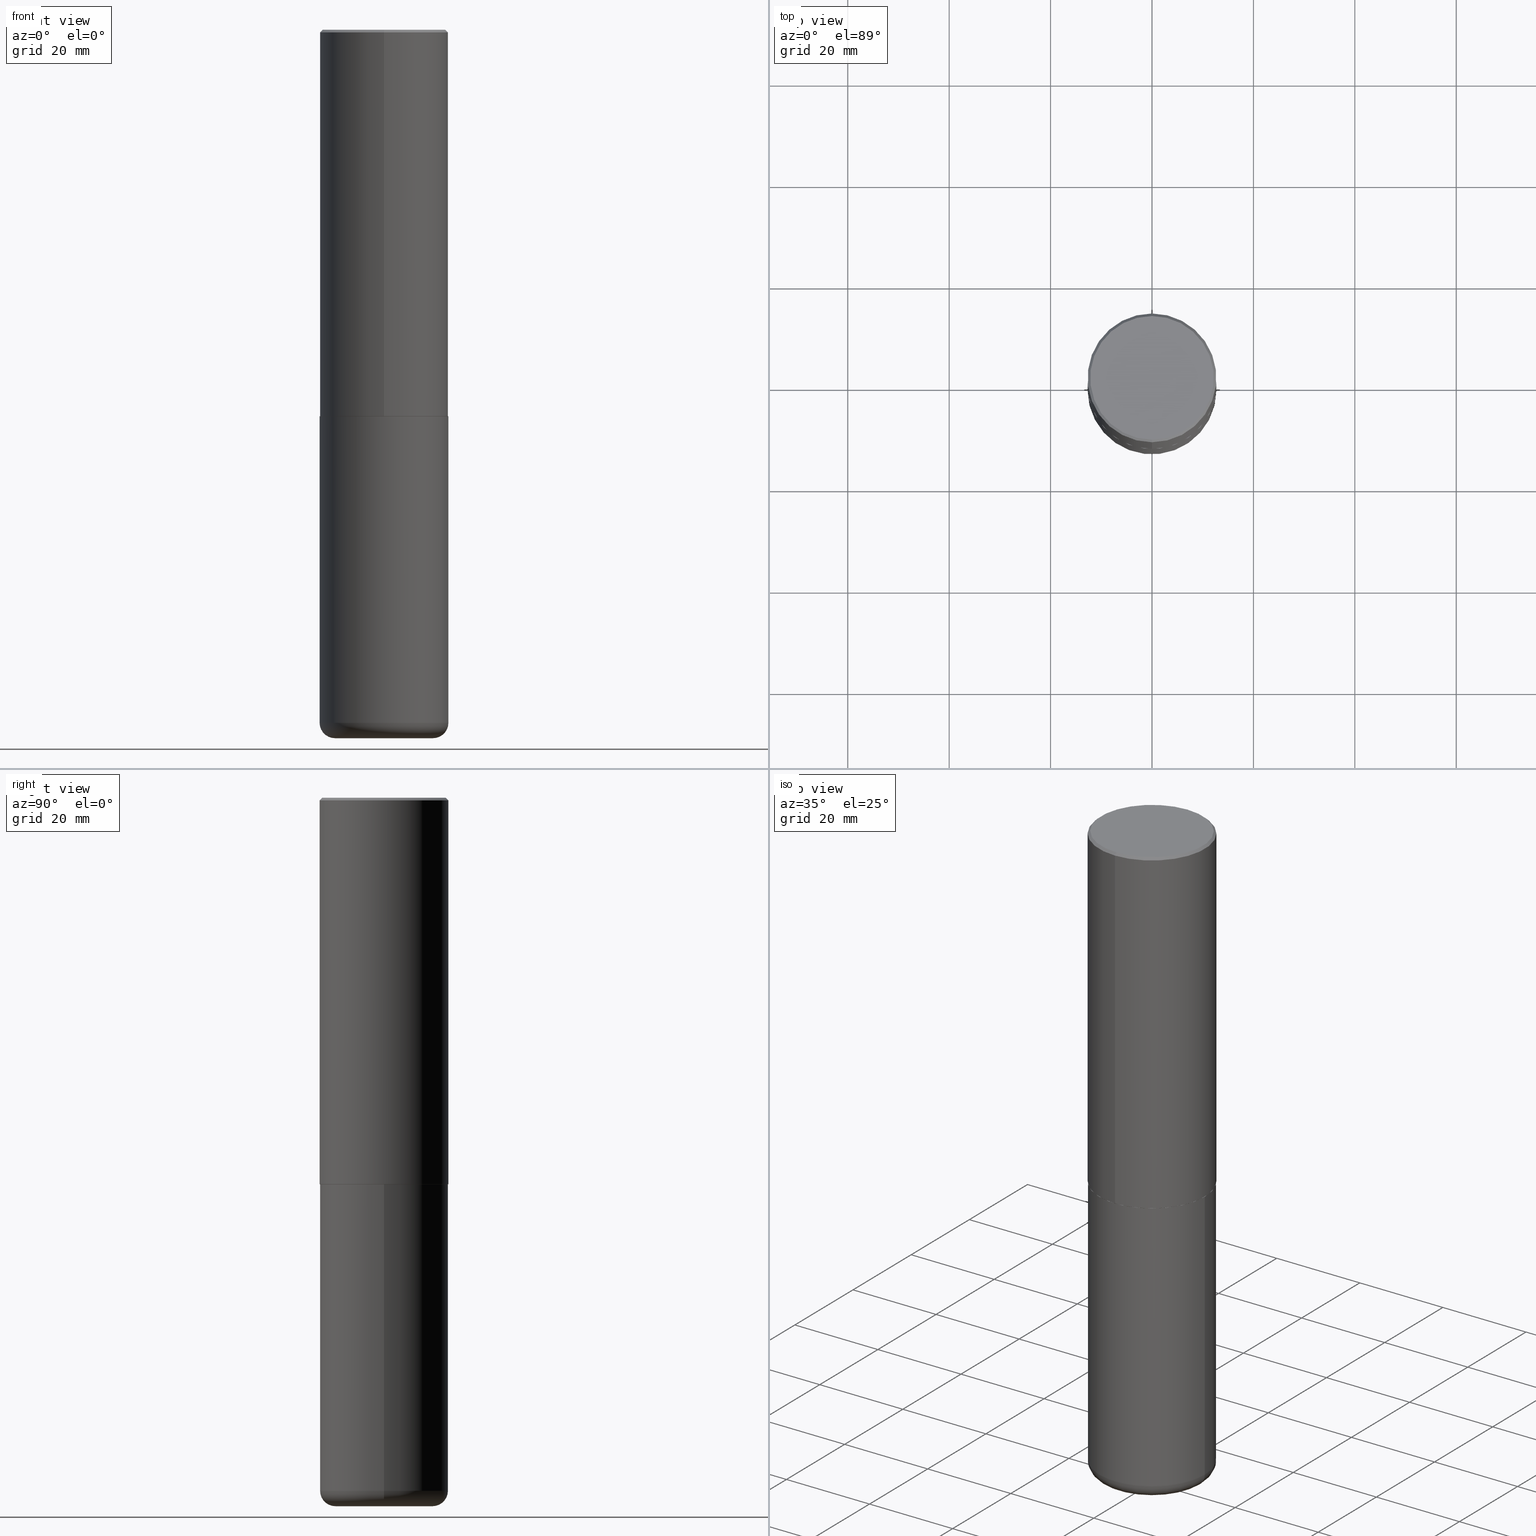
[diagram: canonical four-view strip — front | top / right | iso, engineering-drawing reading convention]
A machine part, canonical four-view strip (front | top / right | iso — engineering-drawing reading convention). The complete STEP part file that produces these views, byte-faithful:
ISO-10303-21;
HEADER;
FILE_DESCRIPTION (( 'STEP AP203' ),
    '1' );
FILE_NAME ('77473.STEP',
    '2024-05-02T19:46:53',
    ( '' ),
    ( '' ),
    'SwSTEP 2.0',
    'SolidWorks 2023',
    '' );
FILE_SCHEMA (( 'CONFIG_CONTROL_DESIGN' ));
ENDSEC;

DATA;
#1 = CIRCLE ( 'NONE', #392, 0.5000000000000001110 ) ;
#2 = AXIS2_PLACEMENT_3D ( 'NONE', #20, #144, #284 ) ;
#3 = ADVANCED_FACE ( 'NONE', ( #391 ), #110, .T. ) ;
#4 = FACE_OUTER_BOUND ( 'NONE', #107, .T. ) ;
#5 = DATE_AND_TIME ( #37, #249 ) ;
#6 = CARTESIAN_POINT ( 'NONE',  ( 7.336406418555408669E-29, -1.047444401652943478E-14, -2.999999999999999556 ) ) ;
#7 = AXIS2_PLACEMENT_3D ( 'NONE', #138, #199, #298 ) ;
#8 =( GEOMETRIC_REPRESENTATION_CONTEXT ( 3 ) GLOBAL_UNCERTAINTY_ASSIGNED_CONTEXT ( ( #28 ) ) GLOBAL_UNIT_ASSIGNED_CONTEXT ( ( #58, #163, #415 ) ) REPRESENTATION_CONTEXT ( 'NONE', 'WORKASPACE' ) );
#9 = CIRCLE ( 'NONE', #233, 0.5000000000000000000 ) ;
#10 = FACE_OUTER_BOUND ( 'NONE', #212, .T. ) ;
#11 = ORIENTED_EDGE ( 'NONE', *, *, #156, .F. ) ;
#12 = EDGE_CURVE ( 'NONE', #390, #152, #371, .T. ) ;
#13 = DIRECTION ( 'NONE',  ( -1.000000000000000000, 7.105427357601009747E-15, 0.000000000000000000 ) ) ;
#14 = DIRECTION ( 'NONE',  ( -2.445468806185136877E-29, 3.491481338843145188E-15, 1.000000000000000000 ) ) ;
#15 = DIRECTION ( 'NONE',  ( -6.982962677686265922E-15, -1.000000000000000000, 3.490694428695902798E-15 ) ) ;
#16 = EDGE_CURVE ( 'NONE', #251, #329, #262, .T. ) ;
#17 = VERTEX_POINT ( 'NONE', #34 ) ;
#18 = DIRECTION ( 'NONE',  ( -6.982962677686265922E-15, -1.000000000000000000, 3.284787166730577015E-15 ) ) ;
#19 = VERTEX_POINT ( 'NONE', #170 ) ;
#20 = CARTESIAN_POINT ( 'NONE',  ( 2.619453942708643347E-45, -3.738203133764044518E-31, -1.070905291231867826E-16 ) ) ;
#21 = VECTOR ( 'NONE', #352, 39.37007874015748143 ) ;
#22 = AXIS2_PLACEMENT_3D ( 'NONE', #413, #26, #159 ) ;
#23 = EDGE_LOOP ( 'NONE', ( #124, #340 ) ) ;
#24 = ADVANCED_FACE ( 'NONE', ( #196 ), #61, .T. ) ;
#25 = ORIENTED_EDGE ( 'NONE', *, *, #404, .F. ) ;
#26 = DIRECTION ( 'NONE',  ( 0.000000000000000000, 0.000000000000000000, 1.000000000000000000 ) ) ;
#27 = DIRECTION ( 'NONE',  ( 1.000000000000000000, -6.982962677686266711E-15, 0.000000000000000000 ) ) ;
#28 = UNCERTAINTY_MEASURE_WITH_UNIT (LENGTH_MEASURE( 1.000000000000000082E-05 ), #58, 'distance_accuracy_value', 'NONE');
#29 = EDGE_CURVE ( 'NONE', #329, #17, #101, .T. ) ;
#30 = ORIENTED_EDGE ( 'NONE', *, *, #286, .F. ) ;
#31 = SECURITY_CLASSIFICATION ( '', '', #254 ) ;
#32 = FACE_OUTER_BOUND ( 'NONE', #216, .T. ) ;
#33 = DIRECTION ( 'NONE',  ( -2.445468806185136597E-29, 3.491481338843145583E-15, 1.000000000000000000 ) ) ;
#34 = CARTESIAN_POINT ( 'NONE',  ( -0.5000000000000000000, -1.107659313095227958E-14, -2.999999999999999556 ) ) ;
#35 = PERSON_AND_ORGANIZATION ( #206, #184 ) ;
#36 = AXIS2_PLACEMENT_3D ( 'NONE', #113, #77, #208 ) ;
#37 = CALENDAR_DATE ( 2024, 2, 5 ) ;
#38 = DIRECTION ( 'NONE',  ( -2.445468806185136597E-29, 3.491481338843145583E-15, 1.000000000000000000 ) ) ;
#39 = DIRECTION ( 'NONE',  ( -2.446018302604025378E-29, 3.490694428695902798E-15, 1.000000000000000000 ) ) ;
#40 = DIRECTION ( 'NONE',  ( -6.982962677686265922E-15, -1.000000000000000000, 3.284787166730577015E-15 ) ) ;
#41 = EDGE_LOOP ( 'NONE', ( #311, #186, #410, #287 ) ) ;
#42 = CONICAL_SURFACE ( 'NONE', #97, 0.4989999999999999991, 0.7853981633979947308 ) ;
#43 = VECTOR ( 'NONE', #291, 39.37007874015748143 ) ;
#44 = DIRECTION ( 'NONE',  ( -6.982962677686265922E-15, -1.000000000000000000, 3.278217592397113496E-15 ) ) ;
#45 = ORIENTED_EDGE ( 'NONE', *, *, #134, .T. ) ;
#46 = ORIENTED_EDGE ( 'NONE', *, *, #178, .T. ) ;
#47 = DESIGN_CONTEXT ( 'detailed design', #376, 'design' ) ;
#48 = DIRECTION ( 'NONE',  ( -6.982962677686265922E-15, -1.000000000000000000, 3.491643216902136408E-15 ) ) ;
#49 = ORIENTED_EDGE ( 'NONE', *, *, #351, .T. ) ;
#50 = ORIENTED_EDGE ( 'NONE', *, *, #156, .T. ) ;
#51 = DIRECTION ( 'NONE',  ( -2.446018302604025378E-29, 3.490694428695902798E-15, 1.000000000000000000 ) ) ;
#52 = ORIENTED_EDGE ( 'NONE', *, *, #136, .F. ) ;
#53 = CARTESIAN_POINT ( 'NONE',  ( -3.430248998885764992E-15, -0.5000000000000001110, -0.01999999999999835937 ) ) ;
#54 = FACE_OUTER_BOUND ( 'NONE', #120, .T. ) ;
#55 = CONICAL_SURFACE ( 'NONE', #354, 0.5000000000000000000, 0.7853981633974463916 ) ;
#56 = VERTEX_POINT ( 'NONE', #103 ) ;
#57 = APPROVAL ( #197, 'UNSPECIFIED' ) ;
#58 =( CONVERSION_BASED_UNIT ( 'INCH', #182 ) LENGTH_UNIT ( ) NAMED_UNIT ( #86 ) );
#59 = CC_DESIGN_SECURITY_CLASSIFICATION ( #31, ( #177 ) ) ;
#60 = EDGE_CURVE ( 'NONE', #56, #152, #9, .T. ) ;
#61 = PLANE ( 'NONE',  #355 ) ;
#62 = CARTESIAN_POINT ( 'NONE',  ( -3.484498376165373188E-15, -0.4990000000000104352, -2.999999999999998224 ) ) ;
#63 = DATE_AND_TIME ( #299, #65 ) ;
#64 = CARTESIAN_POINT ( 'NONE',  ( 1.315662217727603498E-28, -1.878416960297612308E-14, -5.379999999999999893 ) ) ;
#65 = LOCAL_TIME ( 15, 46, 53.00000000000000000, #173 ) ;
#66 = CC_DESIGN_DATE_AND_TIME_ASSIGNMENT ( #63, #356, ( #70 ) ) ;
#67 = DIRECTION ( 'NONE',  ( 1.000000000000000000, -6.982962677686269077E-15, 0.000000000000000000 ) ) ;
#68 = DIRECTION ( 'NONE',  ( -6.982962677686265922E-15, -1.000000000000000000, 3.491643216902136408E-15 ) ) ;
#69 = ORIENTED_EDGE ( 'NONE', *, *, #12, .F. ) ;
#70 = PRODUCT_DEFINITION ( 'UNKNOWN', '', #177, #47 ) ;
#71 = LINE ( 'NONE', #145, #213 ) ;
#72 = CIRCLE ( 'NONE', #230, 0.1199999999999999539 ) ;
#73 = AXIS2_PLACEMENT_3D ( 'NONE', #200, #234, #67 ) ;
#74 = FACE_OUTER_BOUND ( 'NONE', #222, .T. ) ;
#75 = ORIENTED_EDGE ( 'NONE', *, *, #178, .F. ) ;
#76 = DIRECTION ( 'NONE',  ( -2.445468806185136597E-29, 3.491481338843145583E-15, 1.000000000000000000 ) ) ;
#77 = DIRECTION ( 'NONE',  ( -2.445468806185136597E-29, 3.491481338843145583E-15, 1.000000000000000000 ) ) ;
#78 = ORIENTED_EDGE ( 'NONE', *, *, #405, .T. ) ;
#79 = PRODUCT_RELATED_PRODUCT_CATEGORY ( 'detail', '', ( #353 ) ) ;
#80 = AXIS2_PLACEMENT_3D ( 'NONE', #308, #76, #203 ) ;
#81 = APPLICATION_CONTEXT ( 'configuration controlled 3d designs of mechanical parts and assemblies' ) ;
#82 = AXIS2_PLACEMENT_3D ( 'NONE', #402, #339, #15 ) ;
#83 = ORIENTED_EDGE ( 'NONE', *, *, #361, .F. ) ;
#84 = CARTESIAN_POINT ( 'NONE',  ( 0.3799999999999999489, -2.185667318115807981E-14, -5.500000000000000000 ) ) ;
#85 = CARTESIAN_POINT ( 'NONE',  ( -3.491481338843061963E-15, -0.5000000000000107692, -2.998999999999998778 ) ) ;
#86 = DIMENSIONAL_EXPONENTS ( 1.000000000000000000, 0.000000000000000000, 0.000000000000000000, 0.000000000000000000, 0.000000000000000000, 0.000000000000000000, 0.000000000000000000 ) ;
#87 = CC_DESIGN_DATE_AND_TIME_ASSIGNMENT ( #164, #189, ( #31 ) ) ;
#88 = ORIENTED_EDGE ( 'NONE', *, *, #117, .T. ) ;
#89 = CALENDAR_DATE ( 2024, 2, 5 ) ;
#90 = CIRCLE ( 'NONE', #290, 0.5000000000000000000 ) ;
#91 = VERTEX_POINT ( 'NONE', #194 ) ;
#92 = ORIENTED_EDGE ( 'NONE', *, *, #134, .F. ) ;
#93 = CARTESIAN_POINT ( 'NONE',  ( 3.351822085289408337E-15, 0.4800000000000000933, -1.729078590335627126E-15 ) ) ;
#94 = PERSON_AND_ORGANIZATION ( #206, #184 ) ;
#95 = ADVANCED_FACE ( 'NONE', ( #4 ), #297, .T. ) ;
#96 = APPROVAL_STATUS ( 'not_yet_approved' ) ;
#97 = AXIS2_PLACEMENT_3D ( 'NONE', #105, #115, #18 ) ;
#98 = CARTESIAN_POINT ( 'NONE',  ( -3.484498376165373188E-15, -0.4990000000000104352, -2.999999999999998224 ) ) ;
#99 = CIRCLE ( 'NONE', #320, 0.4989999999999999991 ) ;
#100 = FACE_OUTER_BOUND ( 'NONE', #282, .T. ) ;
#101 = LINE ( 'NONE', #293, #21 ) ;
#102 = APPROVAL_DATE_TIME ( #5, #122 ) ;
#103 = CARTESIAN_POINT ( 'NONE',  ( 3.491481338843133355E-15, 0.4999999999999999445, -0.02000000000000185310 ) ) ;
#104 = APPROVAL_PERSON_ORGANIZATION ( #375, #272, #229 ) ;
#105 = CARTESIAN_POINT ( 'NONE',  ( 7.338054907812074731E-29, -1.047208328608770642E-14, -2.999999999999999556 ) ) ;
#106 = CARTESIAN_POINT ( 'NONE',  ( 4.892036605208077240E-31, -6.981388857391842821E-17, -0.02000000000000010797 ) ) ;
#107 = EDGE_LOOP ( 'NONE', ( #334, #242, #179, #92 ) ) ;
#108 = VERTEX_POINT ( 'NONE', #377 ) ;
#109 = CARTESIAN_POINT ( 'NONE',  ( 0.5000000000000000000, -2.227565094181925644E-14, -5.379999999999999893 ) ) ;
#110 = CYLINDRICAL_SURFACE ( 'NONE', #349, 0.5000000000000001110 ) ;
#111 = FACE_OUTER_BOUND ( 'NONE', #174, .T. ) ;
#112 = DIRECTION ( 'NONE',  ( -6.982962677686265922E-15, -1.000000000000000000, 3.490694428695902798E-15 ) ) ;
#113 = CARTESIAN_POINT ( 'NONE',  ( 0.000000000000000000, 0.000000000000000000, 0.000000000000000000 ) ) ;
#114 = EDGE_LOOP ( 'NONE', ( #25, #88, #45, #158 ) ) ;
#115 = DIRECTION ( 'NONE',  ( -2.446018302604025378E-29, 3.490694428695902798E-15, 1.000000000000000000 ) ) ;
#116 = CIRCLE ( 'NONE', #162, 0.3799999999999999489 ) ;
#117 = EDGE_CURVE ( 'NONE', #365, #148, #99, .T. ) ;
#118 = CIRCLE ( 'NONE', #276, 0.3799999999999999489 ) ;
#119 = CLOSED_SHELL ( 'NONE', ( #95, #198, #183, #418, #3, #195, #416, #389 ) ) ;
#120 = EDGE_LOOP ( 'NONE', ( #302, #151, #374, #395 ) ) ;
#121 = DIRECTION ( 'NONE',  ( -2.446018302604025378E-29, 3.490694428695902798E-15, 1.000000000000000000 ) ) ;
#122 = APPROVAL ( #414, 'UNSPECIFIED' ) ;
#123 = ADVANCED_FACE ( 'NONE', ( #100 ), #362, .T. ) ;
#124 = ORIENTED_EDGE ( 'NONE', *, *, #143, .F. ) ;
#125 = ORIENTED_EDGE ( 'NONE', *, *, #386, .T. ) ;
#126 = DIRECTION ( 'NONE',  ( 2.446018302604025378E-29, -3.490694428695902798E-15, -1.000000000000000000 ) ) ;
#127 = APPROVAL_DATE_TIME ( #160, #272 ) ;
#128 = DIRECTION ( 'NONE',  ( -2.446018302604025097E-29, 3.490694428695902798E-15, 1.000000000000000000 ) ) ;
#129 = AXIS2_PLACEMENT_3D ( 'NONE', #130, #316, #190 ) ;
#130 = CARTESIAN_POINT ( 'NONE',  ( 7.338054907812074731E-29, -1.047208328608770642E-14, -2.999999999999999556 ) ) ;
#131 = PERSON_AND_ORGANIZATION_ROLE ( 'design_owner' ) ;
#132 =( LENGTH_UNIT ( ) NAMED_UNIT ( * ) SI_UNIT ( $, .METRE. ) );
#133 = CARTESIAN_POINT ( 'NONE',  ( 4.892036605208077240E-31, -6.981388857391842821E-17, -0.02000000000000010797 ) ) ;
#134 = EDGE_CURVE ( 'NONE', #148, #390, #240, .T. ) ;
#135 = CALENDAR_DATE ( 2024, 2, 5 ) ;
#136 = EDGE_CURVE ( 'NONE', #313, #251, #400, .T. ) ;
#137 = DIRECTION ( 'NONE',  ( 2.438088387897960049E-29, -3.491481338843145188E-15, -1.000000000000000000 ) ) ;
#138 = CARTESIAN_POINT ( 'NONE',  ( 0.3799999999999999489, -2.143769542049690317E-14, -5.379999999999999893 ) ) ;
#139 = AXIS2_PLACEMENT_3D ( 'NONE', #64, #38, #172 ) ;
#140 = LOCAL_TIME ( 15, 46, 53.00000000000000000, #347 ) ;
#141 = ADVANCED_FACE ( 'NONE', ( #10 ), #379, .F. ) ;
#142 = CARTESIAN_POINT ( 'NONE',  ( 3.552713678800501718E-15, 0.5000000000000001110, -1.745347214347951794E-15 ) ) ;
#143 = EDGE_CURVE ( 'NONE', #313, #108, #116, .T. ) ;
#144 = DIRECTION ( 'NONE',  ( -2.446018302604025378E-29, 3.490694428695902798E-15, 1.000000000000000000 ) ) ;
#145 = CARTESIAN_POINT ( 'NONE',  ( 3.491481338843133355E-15, 0.4999999999999999445, -0.02000000000000185310 ) ) ;
#146 = CIRCLE ( 'NONE', #185, 0.5000000000000003331 ) ;
#147 = CARTESIAN_POINT ( 'NONE',  ( 0.5000000000000000000, -3.491481338843133355E-15, 2.438088387897967896E-29 ) ) ;
#148 = VERTEX_POINT ( 'NONE', #98 ) ;
#149 = CARTESIAN_POINT ( 'NONE',  ( -0.3799999999999999489, -1.608410720708774314E-14, -5.379999999999999893 ) ) ;
#150 = DIRECTION ( 'NONE',  ( -2.445468806185136597E-29, 3.491481338843145583E-15, 1.000000000000000000 ) ) ;
#151 = ORIENTED_EDGE ( 'NONE', *, *, #286, .T. ) ;
#152 = VERTEX_POINT ( 'NONE', #323 ) ;
#153 = CC_DESIGN_PERSON_AND_ORGANIZATION_ASSIGNMENT ( #343, #317, ( #31 ) ) ;
#154 = LOCAL_TIME ( 15, 46, 53.00000000000000000, #406 ) ;
#155 = PLANE ( 'NONE',  #129 ) ;
#156 = EDGE_CURVE ( 'NONE', #108, #329, #72, .T. ) ;
#157 = PERSON_AND_ORGANIZATION ( #206, #184 ) ;
#158 = ORIENTED_EDGE ( 'NONE', *, *, #409, .F. ) ;
#159 = DIRECTION ( 'NONE',  ( 1.000000000000000000, 0.000000000000000000, 0.000000000000000000 ) ) ;
#160 = DATE_AND_TIME ( #89, #140 ) ;
#161 = LOCAL_TIME ( 15, 46, 53.00000000000000000, #201 ) ;
#162 = AXIS2_PLACEMENT_3D ( 'NONE', #267, #382, #385 ) ;
#163 =( NAMED_UNIT ( * ) PLANE_ANGLE_UNIT ( ) SI_UNIT ( $, .RADIAN. ) );
#164 = DATE_AND_TIME ( #345, #154 ) ;
#165 = LINE ( 'NONE', #255, #43 ) ;
#166 = DIRECTION ( 'NONE',  ( -6.982962677686265922E-15, -1.000000000000000000, 3.284787166730577015E-15 ) ) ;
#167 = CC_DESIGN_PERSON_AND_ORGANIZATION_ASSIGNMENT ( #226, #131, ( #353 ) ) ;
#168 = CIRCLE ( 'NONE', #285, 0.5000000000000000000 ) ;
#169 = APPROVAL_ROLE ( '' ) ;
#170 = CARTESIAN_POINT ( 'NONE',  ( -3.361644018908050055E-15, -0.4800000000000000933, 1.568442796650846842E-15 ) ) ;
#171 = APPROVAL_DATE_TIME ( #264, #57 ) ;
#172 = DIRECTION ( 'NONE',  ( 1.000000000000000000, -6.982962677686264344E-15, 4.883557194083112340E-29 ) ) ;
#173 = COORDINATED_UNIVERSAL_TIME_OFFSET ( 5, 0, .BEHIND. ) ;
#174 = EDGE_LOOP ( 'NONE', ( #315, #49, #245, #223 ) ) ;
#175 = CARTESIAN_POINT ( 'NONE',  ( 1.345007843401824904E-28, -1.920314736363729972E-14, -5.500000000000000000 ) ) ;
#176 = DIRECTION ( 'NONE',  ( -2.446018302604025378E-29, 3.490694428695902798E-15, 1.000000000000000000 ) ) ;
#177 = PRODUCT_DEFINITION_FORMATION_WITH_SPECIFIED_SOURCE ( 'ANY', '', #353, .NOT_KNOWN. ) ;
#178 = EDGE_CURVE ( 'NONE', #301, #56, #399, .T. ) ;
#179 = ORIENTED_EDGE ( 'NONE', *, *, #278, .F. ) ;
#180 = DIRECTION ( 'NONE',  ( -6.982962677686265922E-15, -1.000000000000000000, 3.490694428695902798E-15 ) ) ;
#181 = CARTESIAN_POINT ( 'NONE',  ( 3.552713678800539584E-15, 0.4999999999999898970, -2.999000000000001886 ) ) ;
#182 = LENGTH_MEASURE_WITH_UNIT ( LENGTH_MEASURE( 0.02539999999999999897 ), #132 );
#183 = ADVANCED_FACE ( 'NONE', ( #54 ), #358, .T. ) ;
#184 = ORGANIZATION ( 'UNSPECIFIED', 'UNSPECIFIED', '' ) ;
#185 = AXIS2_PLACEMENT_3D ( 'NONE', #408, #253, #187 ) ;
#186 = ORIENTED_EDGE ( 'NONE', *, *, #29, .T. ) ;
#187 = DIRECTION ( 'NONE',  ( -6.982962677686265922E-15, -1.000000000000000000, 3.278217592397113496E-15 ) ) ;
#188 = DIRECTION ( 'NONE',  ( -2.445468806185136597E-29, 3.491481338843145583E-15, 1.000000000000000000 ) ) ;
#189 = DATE_TIME_ROLE ( 'classification_date' ) ;
#190 = DIRECTION ( 'NONE',  ( -6.982962677686265922E-15, -1.000000000000000000, 3.490694428695902798E-15 ) ) ;
#191 = CIRCLE ( 'NONE', #363, 0.4989999999999999991 ) ;
#192 = CARTESIAN_POINT ( 'NONE',  ( -3.491481338843133750E-15, -0.5000000000000001110, 1.745347214347951794E-15 ) ) ;
#193 = CC_DESIGN_PERSON_AND_ORGANIZATION_ASSIGNMENT ( #157, #258, ( #177 ) ) ;
#194 = CARTESIAN_POINT ( 'NONE',  ( 0.5000000000000000000, -1.396592535537256813E-14, -2.999999999999999556 ) ) ;
#195 = ADVANCED_FACE ( 'NONE', ( #270 ), #42, .T. ) ;
#196 = FACE_OUTER_BOUND ( 'NONE', #23, .T. ) ;
#197 = APPROVAL_STATUS ( 'not_yet_approved' ) ;
#198 = ADVANCED_FACE ( 'NONE', ( #364 ), #303, .T. ) ;
#199 = DIRECTION ( 'NONE',  ( -6.982962677686266711E-15, -1.000000000000000000, 3.491481338843145583E-15 ) ) ;
#200 = CARTESIAN_POINT ( 'NONE',  ( 1.315662217727603498E-28, -1.878416960297612308E-14, -5.379999999999999893 ) ) ;
#201 = COORDINATED_UNIVERSAL_TIME_OFFSET ( 5, 0, .BEHIND. ) ;
#202 = CLOSED_SHELL ( 'NONE', ( #296, #123, #141, #250, #304, #24 ) ) ;
#203 = DIRECTION ( 'NONE',  ( 1.000000000000000000, -6.982962677686264344E-15, 4.883557194083112340E-29 ) ) ;
#204 = DIRECTION ( 'NONE',  ( -2.446018302604025378E-29, 3.490694428695902798E-15, 1.000000000000000000 ) ) ;
#205 = ORIENTED_EDGE ( 'NONE', *, *, #16, .F. ) ;
#206 = PERSON ( 'UNSPECIFIED', 'UNSPECIFIED', 'UNSPECIFIED', ('UNSPECIFIED'), ('UNSPECIFIED'), ('UNSPECIFIED') ) ;
#207 = ORIENTED_EDGE ( 'NONE', *, *, #228, .T. ) ;
#208 = DIRECTION ( 'NONE',  ( 1.000000000000000000, -6.982962677686266711E-15, 4.876176775795935793E-29 ) ) ;
#209 = FACE_OUTER_BOUND ( 'NONE', #41, .T. ) ;
#210 = EDGE_LOOP ( 'NONE', ( #357, #387 ) ) ;
#211 = VECTOR ( 'NONE', #243, 39.37007874015748143 ) ;
#212 = EDGE_LOOP ( 'NONE', ( #125, #78 ) ) ;
#213 = VECTOR ( 'NONE', #244, 39.37007874015748143 ) ;
#214 = ORIENTED_EDGE ( 'NONE', *, *, #60, .T. ) ;
#215 = CARTESIAN_POINT ( 'NONE',  ( 2.619453942708643347E-45, -3.738203133764044518E-31, -1.070905291231867826E-16 ) ) ;
#216 = EDGE_LOOP ( 'NONE', ( #83, #397 ) ) ;
#217 = EDGE_LOOP ( 'NONE', ( #75, #225, #271, #314 ) ) ;
#218 = ORIENTED_EDGE ( 'NONE', *, *, #380, .T. ) ;
#219 = APPLICATION_PROTOCOL_DEFINITION ( 'international standard', 'config_control_design', 1994, #81 ) ;
#220 = AXIS2_PLACEMENT_3D ( 'NONE', #246, #150, #248 ) ;
#221 = MANIFOLD_SOLID_BREP ( 'Body-Move/Copy2[1]', #202 ) ;
#222 = EDGE_LOOP ( 'NONE', ( #11, #218, #310, #346 ) ) ;
#223 = ORIENTED_EDGE ( 'NONE', *, *, #405, .F. ) ;
#224 = DIRECTION ( 'NONE',  ( 1.000000000000000000, -6.982962677686261977E-15, 0.000000000000000000 ) ) ;
#225 = ORIENTED_EDGE ( 'NONE', *, *, #409, .T. ) ;
#226 = PERSON_AND_ORGANIZATION ( #206, #184 ) ;
#227 = PERSON_AND_ORGANIZATION_ROLE ( 'creator' ) ;
#228 = EDGE_CURVE ( 'NONE', #367, #56, #71, .T. ) ;
#229 = APPROVAL_ROLE ( '' ) ;
#230 = AXIS2_PLACEMENT_3D ( 'NONE', #149, #396, #13 ) ;
#231 = AXIS2_PLACEMENT_3D ( 'NONE', #93, #411, #342 ) ;
#232 = SHAPE_DEFINITION_REPRESENTATION ( #238, #309 ) ;
#233 = AXIS2_PLACEMENT_3D ( 'NONE', #106, #263, #68 ) ;
#234 = DIRECTION ( 'NONE',  ( -2.445468806185136597E-29, 3.491481338843145583E-15, 1.000000000000000000 ) ) ;
#235 = PERSON_AND_ORGANIZATION ( #206, #184 ) ;
#236 = DIRECTION ( 'NONE',  ( -2.446018302604025378E-29, 3.490694428695902798E-15, 1.000000000000000000 ) ) ;
#237 = DIRECTION ( 'NONE',  ( 6.982962677686265922E-15, 1.000000000000000000, -3.491643216902136408E-15 ) ) ;
#238 = PRODUCT_DEFINITION_SHAPE ( 'NONE', 'NONE',  #70 ) ;
#239 = AXIS2_PLACEMENT_3D ( 'NONE', #279, #51, #44 ) ;
#240 = LINE ( 'NONE', #62, #338 ) ;
#241 = PERSON_AND_ORGANIZATION_ROLE ( 'creator' ) ;
#242 = ORIENTED_EDGE ( 'NONE', *, *, #404, .T. ) ;
#243 = DIRECTION ( 'NONE',  ( -4.851104656540954020E-15, -0.7071067811865485719, -0.7071067811865464625 ) ) ;
#244 = DIRECTION ( 'NONE',  ( 4.937700262164537787E-15, 0.7071067811865436870, -0.7071067811865513475 ) ) ;
#245 = ORIENTED_EDGE ( 'NONE', *, *, #275, .T. ) ;
#246 = CARTESIAN_POINT ( 'NONE',  ( 0.000000000000000000, 0.000000000000000000, 0.000000000000000000 ) ) ;
#247 = AXIS2_PLACEMENT_3D ( 'NONE', #6, #137, #269 ) ;
#248 = DIRECTION ( 'NONE',  ( 1.000000000000000000, -6.982962677686266711E-15, 4.876176775795935793E-29 ) ) ;
#249 = LOCAL_TIME ( 15, 46, 53.00000000000000000, #350 ) ;
#250 = ADVANCED_FACE ( 'NONE', ( #111 ), #252, .T. ) ;
#251 = VERTEX_POINT ( 'NONE', #109 ) ;
#252 = CYLINDRICAL_SURFACE ( 'NONE', #220, 0.5000000000000000000 ) ;
#253 = DIRECTION ( 'NONE',  ( -2.446018302604025378E-29, 3.490694428695902798E-15, 1.000000000000000000 ) ) ;
#254 = SECURITY_CLASSIFICATION_LEVEL ( 'unclassified' ) ;
#255 = CARTESIAN_POINT ( 'NONE',  ( 3.545608251442972496E-15, 0.4989999999999895630, -3.000000000000001332 ) ) ;
#256 = MECHANICAL_CONTEXT ( 'NONE', #81, 'mechanical' ) ;
#257 = APPLICATION_PROTOCOL_DEFINITION ( 'international standard', 'config_control_design', 1994, #376 ) ;
#258 = PERSON_AND_ORGANIZATION_ROLE ( 'design_supplier' ) ;
#259 = DIRECTION ( 'NONE',  ( 2.438088387897960049E-29, -3.491481338843145188E-15, -1.000000000000000000 ) ) ;
#260 = AXIS2_PLACEMENT_3D ( 'NONE', #381, #328, #166 ) ;
#261 = APPROVAL_PERSON_ORGANIZATION ( #318, #122, #265 ) ;
#262 = CIRCLE ( 'NONE', #73, 0.5000000000000001110 ) ;
#263 = DIRECTION ( 'NONE',  ( -2.446018302604025378E-29, 3.490694428695902798E-15, 1.000000000000000000 ) ) ;
#264 = DATE_AND_TIME ( #135, #161 ) ;
#265 = APPROVAL_ROLE ( '' ) ;
#266 = DIRECTION ( 'NONE',  ( -1.000000000000000000, 6.982962677686265922E-15, -4.876176775795935793E-29 ) ) ;
#267 = CARTESIAN_POINT ( 'NONE',  ( 1.345007843401824904E-28, -1.920314736363729972E-14, -5.500000000000000000 ) ) ;
#268 = CIRCLE ( 'NONE', #2, 0.4800000000000000933 ) ;
#269 = DIRECTION ( 'NONE',  ( -1.000000000000000000, 6.982962677686265922E-15, -4.876176775795935793E-29 ) ) ;
#270 = FACE_OUTER_BOUND ( 'NONE', #114, .T. ) ;
#271 = ORIENTED_EDGE ( 'NONE', *, *, #12, .T. ) ;
#272 = APPROVAL ( #96, 'UNSPECIFIED' ) ;
#273 = CARTESIAN_POINT ( 'NONE',  ( 4.892036605208077240E-31, -6.981388857391842821E-17, -0.02000000000000010797 ) ) ;
#274 = EDGE_LOOP ( 'NONE', ( #332, #46, #366, #69 ) ) ;
#275 = EDGE_CURVE ( 'NONE', #251, #91, #277, .T. ) ;
#276 = AXIS2_PLACEMENT_3D ( 'NONE', #175, #33, #224 ) ;
#277 = LINE ( 'NONE', #147, #412 ) ;
#278 = EDGE_CURVE ( 'NONE', #390, #301, #330, .T. ) ;
#279 = CARTESIAN_POINT ( 'NONE',  ( 7.335608889509473609E-29, -1.046859259165901344E-14, -2.999000000000000554 ) ) ;
#280 = CC_DESIGN_PERSON_AND_ORGANIZATION_ASSIGNMENT ( #94, #227, ( #70 ) ) ;
#281 = CARTESIAN_POINT ( 'NONE',  ( 7.338054907812074731E-29, -1.047208328608770642E-14, -2.999999999999999556 ) ) ;
#282 = EDGE_LOOP ( 'NONE', ( #307, #50, #205, #52 ) ) ;
#283 = AXIS2_PLACEMENT_3D ( 'NONE', #133, #325, #237 ) ;
#284 = DIRECTION ( 'NONE',  ( -6.982962677686265922E-15, -1.000000000000000000, 3.490694428695902798E-15 ) ) ;
#285 = AXIS2_PLACEMENT_3D ( 'NONE', #273, #204, #48 ) ;
#286 = EDGE_CURVE ( 'NONE', #19, #152, #360, .T. ) ;
#287 = ORIENTED_EDGE ( 'NONE', *, *, #275, .F. ) ;
#288 = CARTESIAN_POINT ( 'NONE',  ( 7.336406418555408669E-29, -1.047444401652943478E-14, -2.999999999999999556 ) ) ;
#289 = CARTESIAN_POINT ( 'NONE',  ( 0.000000000000000000, 0.000000000000000000, 0.000000000000000000 ) ) ;
#290 = AXIS2_PLACEMENT_3D ( 'NONE', #288, #188, #319 ) ;
#291 = DIRECTION ( 'NONE',  ( 5.024295867790807626E-15, 0.7071067811869363728, 0.7071067811861586616 ) ) ;
#292 = CC_DESIGN_APPROVAL ( #57, ( #177 ) ) ;
#293 = CARTESIAN_POINT ( 'NONE',  ( -0.5000000000000000000, 3.552713678800500929E-15, -2.459467545127452891E-29 ) ) ;
#294 = DIRECTION ( 'NONE',  ( -4.937700262167245946E-15, -0.7071067811869314879, 0.7071067811861635466 ) ) ;
#295 = DIRECTION ( 'NONE',  ( -2.446018302604025097E-29, 3.490694428695902798E-15, 1.000000000000000000 ) ) ;
#296 = ADVANCED_FACE ( 'NONE', ( #209 ), #300, .T. ) ;
#297 = CONICAL_SURFACE ( 'NONE', #260, 0.4989999999999999991, 0.7853981633979947308 ) ;
#298 = DIRECTION ( 'NONE',  ( 1.000000000000000000, -6.982962677686270655E-15, 0.000000000000000000 ) ) ;
#299 = CALENDAR_DATE ( 2024, 2, 5 ) ;
#300 = CYLINDRICAL_SURFACE ( 'NONE', #36, 0.5000000000000000000 ) ;
#301 = VERTEX_POINT ( 'NONE', #181 ) ;
#302 = ORIENTED_EDGE ( 'NONE', *, *, #335, .F. ) ;
#303 = CYLINDRICAL_SURFACE ( 'NONE', #82, 0.5000000000000001110 ) ;
#304 = ADVANCED_FACE ( 'NONE', ( #74 ), #359, .T. ) ;
#305 = AXIS2_PLACEMENT_3D ( 'NONE', #215, #121, #180 ) ;
#306 = DIRECTION ( 'NONE',  ( -6.982962677686265922E-15, -1.000000000000000000, 3.284787166730577015E-15 ) ) ;
#307 = ORIENTED_EDGE ( 'NONE', *, *, #143, .T. ) ;
#308 = CARTESIAN_POINT ( 'NONE',  ( 1.315662217727603498E-28, -1.878416960297612308E-14, -5.379999999999999893 ) ) ;
#309 = ADVANCED_BREP_SHAPE_REPRESENTATION ( '77473', ( #221, #348, #22 ), #8 ) ;
#310 = ORIENTED_EDGE ( 'NONE', *, *, #136, .T. ) ;
#311 = ORIENTED_EDGE ( 'NONE', *, *, #16, .T. ) ;
#312 = CARTESIAN_POINT ( 'NONE',  ( 3.421651712066271240E-15, 0.4800000000000000933, -1.782623854897220357E-15 ) ) ;
#313 = VERTEX_POINT ( 'NONE', #84 ) ;
#314 = ORIENTED_EDGE ( 'NONE', *, *, #60, .F. ) ;
#315 = ORIENTED_EDGE ( 'NONE', *, *, #29, .F. ) ;
#316 = DIRECTION ( 'NONE',  ( -2.446018302604025097E-29, 3.490694428695902798E-15, 1.000000000000000000 ) ) ;
#317 = PERSON_AND_ORGANIZATION_ROLE ( 'classification_officer' ) ;
#318 = PERSON_AND_ORGANIZATION ( #206, #184 ) ;
#319 = DIRECTION ( 'NONE',  ( 1.000000000000000000, -6.982962677686266711E-15, 0.000000000000000000 ) ) ;
#320 = AXIS2_PLACEMENT_3D ( 'NONE', #327, #236, #40 ) ;
#321 = CIRCLE ( 'NONE', #305, 0.4800000000000000933 ) ;
#322 = DIRECTION ( 'NONE',  ( -2.445468806185136597E-29, 3.491481338843145583E-15, 1.000000000000000000 ) ) ;
#323 = CARTESIAN_POINT ( 'NONE',  ( -3.430248998885764992E-15, -0.5000000000000001110, -0.01999999999999835937 ) ) ;
#324 = CARTESIAN_POINT ( 'NONE',  ( 1.345007843401824904E-28, -1.920314736363729972E-14, -5.500000000000000000 ) ) ;
#325 = DIRECTION ( 'NONE',  ( 2.446018302604025378E-29, -3.490694428695902798E-15, -1.000000000000000000 ) ) ;
#326 = AXIS2_PLACEMENT_3D ( 'NONE', #370, #322, #27 ) ;
#327 = CARTESIAN_POINT ( 'NONE',  ( 7.338054907812074731E-29, -1.047208328608770642E-14, -2.999999999999999556 ) ) ;
#328 = DIRECTION ( 'NONE',  ( -2.446018302604025378E-29, 3.490694428695902798E-15, 1.000000000000000000 ) ) ;
#329 = VERTEX_POINT ( 'NONE', #336 ) ;
#330 = CIRCLE ( 'NONE', #239, 0.5000000000000003331 ) ;
#331 = CARTESIAN_POINT ( 'NONE',  ( 1.315662217727603498E-28, -1.878416960297612308E-14, -5.379999999999999893 ) ) ;
#332 = ORIENTED_EDGE ( 'NONE', *, *, #278, .T. ) ;
#333 = DIRECTION ( 'NONE',  ( 1.000000000000000000, -6.982962677686269077E-15, 0.000000000000000000 ) ) ;
#334 = ORIENTED_EDGE ( 'NONE', *, *, #361, .T. ) ;
#335 = EDGE_CURVE ( 'NONE', #19, #367, #321, .T. ) ;
#336 = CARTESIAN_POINT ( 'NONE',  ( -0.5000000000000000000, -1.523145592417562216E-14, -5.379999999999999893 ) ) ;
#337 = APPROVAL_PERSON_ORGANIZATION ( #35, #57, #169 ) ;
#338 = VECTOR ( 'NONE', #294, 39.37007874015748143 ) ;
#339 = DIRECTION ( 'NONE',  ( -2.446018302604025378E-29, 3.490694428695902798E-15, 1.000000000000000000 ) ) ;
#340 = ORIENTED_EDGE ( 'NONE', *, *, #380, .F. ) ;
#341 = DIRECTION ( 'NONE',  ( 6.982962677686265922E-15, 1.000000000000000000, -3.491643216902136408E-15 ) ) ;
#342 = DIRECTION ( 'NONE',  ( 6.982962677686265922E-15, 1.000000000000000000, -3.490694428695902798E-15 ) ) ;
#343 = PERSON_AND_ORGANIZATION ( #206, #184 ) ;
#344 = CARTESIAN_POINT ( 'NONE',  ( 4.892036605208077240E-31, -6.981388857391842821E-17, -0.02000000000000010797 ) ) ;
#345 = CALENDAR_DATE ( 2024, 2, 5 ) ;
#346 = ORIENTED_EDGE ( 'NONE', *, *, #351, .F. ) ;
#347 = COORDINATED_UNIVERSAL_TIME_OFFSET ( 5, 0, .BEHIND. ) ;
#348 = MANIFOLD_SOLID_BREP ( 'Body-Move/Copy2[2]', #119 ) ;
#349 = AXIS2_PLACEMENT_3D ( 'NONE', #289, #39, #112 ) ;
#350 = COORDINATED_UNIVERSAL_TIME_OFFSET ( 5, 0, .BEHIND. ) ;
#351 = EDGE_CURVE ( 'NONE', #329, #251, #1, .T. ) ;
#352 = DIRECTION ( 'NONE',  ( -2.445468806185136877E-29, 3.491481338843145188E-15, 1.000000000000000000 ) ) ;
#353 = PRODUCT ( '77473', '77473', '', ( #256 ) ) ;
#354 = AXIS2_PLACEMENT_3D ( 'NONE', #344, #126, #341 ) ;
#355 = AXIS2_PLACEMENT_3D ( 'NONE', #324, #259, #266 ) ;
#356 = DATE_TIME_ROLE ( 'creation_date' ) ;
#357 = ORIENTED_EDGE ( 'NONE', *, *, #369, .T. ) ;
#358 = CONICAL_SURFACE ( 'NONE', #283, 0.5000000000000000000, 0.7853981633974463916 ) ;
#359 = TOROIDAL_SURFACE ( 'NONE', #80, 0.3799999999999999489, 0.1199999999999999539 ) ;
#360 = LINE ( 'NONE', #53, #211 ) ;
#361 = EDGE_CURVE ( 'NONE', #148, #365, #191, .T. ) ;
#362 = TOROIDAL_SURFACE ( 'NONE', #139, 0.3799999999999999489, 0.1199999999999999539 ) ;
#363 = AXIS2_PLACEMENT_3D ( 'NONE', #281, #176, #306 ) ;
#364 = FACE_OUTER_BOUND ( 'NONE', #274, .T. ) ;
#365 = VERTEX_POINT ( 'NONE', #398 ) ;
#366 = ORIENTED_EDGE ( 'NONE', *, *, #373, .F. ) ;
#367 = VERTEX_POINT ( 'NONE', #312 ) ;
#368 = PLANE ( 'NONE',  #231 ) ;
#369 = EDGE_CURVE ( 'NONE', #367, #19, #268, .T. ) ;
#370 = CARTESIAN_POINT ( 'NONE',  ( 7.336406418555408669E-29, -1.047444401652943478E-14, -2.999999999999999556 ) ) ;
#371 = LINE ( 'NONE', #192, #403 ) ;
#372 = FACE_OUTER_BOUND ( 'NONE', #388, .T. ) ;
#373 = EDGE_CURVE ( 'NONE', #152, #56, #168, .T. ) ;
#374 = ORIENTED_EDGE ( 'NONE', *, *, #373, .T. ) ;
#375 = PERSON_AND_ORGANIZATION ( #206, #184 ) ;
#376 = APPLICATION_CONTEXT ( 'configuration controlled 3d designs of mechanical parts and assemblies' ) ;
#377 = CARTESIAN_POINT ( 'NONE',  ( -0.3799999999999999489, -1.586727044596227254E-14, -5.500000000000000000 ) ) ;
#378 = CIRCLE ( 'NONE', #326, 0.5000000000000000000 ) ;
#379 = PLANE ( 'NONE',  #247 ) ;
#380 = EDGE_CURVE ( 'NONE', #108, #313, #118, .T. ) ;
#381 = CARTESIAN_POINT ( 'NONE',  ( 7.338054907812074731E-29, -1.047208328608770642E-14, -2.999999999999999556 ) ) ;
#382 = DIRECTION ( 'NONE',  ( -2.445468806185136597E-29, 3.491481338843145583E-15, 1.000000000000000000 ) ) ;
#383 = CC_DESIGN_APPROVAL ( #122, ( #31 ) ) ;
#384 = VECTOR ( 'NONE', #128, 39.37007874015748143 ) ;
#385 = DIRECTION ( 'NONE',  ( 1.000000000000000000, -6.982962677686261977E-15, 0.000000000000000000 ) ) ;
#386 = EDGE_CURVE ( 'NONE', #91, #17, #90, .T. ) ;
#387 = ORIENTED_EDGE ( 'NONE', *, *, #335, .T. ) ;
#388 = EDGE_LOOP ( 'NONE', ( #30, #407, #207, #214 ) ) ;
#389 = ADVANCED_FACE ( 'NONE', ( #417 ), #368, .F. ) ;
#390 = VERTEX_POINT ( 'NONE', #85 ) ;
#391 = FACE_OUTER_BOUND ( 'NONE', #217, .T. ) ;
#392 = AXIS2_PLACEMENT_3D ( 'NONE', #331, #394, #333 ) ;
#393 = CC_DESIGN_PERSON_AND_ORGANIZATION_ASSIGNMENT ( #235, #241, ( #177 ) ) ;
#394 = DIRECTION ( 'NONE',  ( -2.445468806185136597E-29, 3.491481338843145583E-15, 1.000000000000000000 ) ) ;
#395 = ORIENTED_EDGE ( 'NONE', *, *, #228, .F. ) ;
#396 = DIRECTION ( 'NONE',  ( 7.105427357601001859E-15, 1.000000000000000000, -3.491481338843145583E-15 ) ) ;
#397 = ORIENTED_EDGE ( 'NONE', *, *, #117, .F. ) ;
#398 = CARTESIAN_POINT ( 'NONE',  ( 3.549160965121774184E-15, 0.4989999999999895630, -3.000000000000001332 ) ) ;
#399 = LINE ( 'NONE', #142, #384 ) ;
#400 = CIRCLE ( 'NONE', #7, 0.1199999999999999539 ) ;
#401 = CC_DESIGN_APPROVAL ( #272, ( #70 ) ) ;
#402 = CARTESIAN_POINT ( 'NONE',  ( 0.000000000000000000, 0.000000000000000000, 0.000000000000000000 ) ) ;
#403 = VECTOR ( 'NONE', #295, 39.37007874015748143 ) ;
#404 = EDGE_CURVE ( 'NONE', #365, #301, #165, .T. ) ;
#405 = EDGE_CURVE ( 'NONE', #17, #91, #378, .T. ) ;
#406 = COORDINATED_UNIVERSAL_TIME_OFFSET ( 5, 0, .BEHIND. ) ;
#407 = ORIENTED_EDGE ( 'NONE', *, *, #369, .F. ) ;
#408 = CARTESIAN_POINT ( 'NONE',  ( 7.335608889509473609E-29, -1.046859259165901344E-14, -2.999000000000000554 ) ) ;
#409 = EDGE_CURVE ( 'NONE', #301, #390, #146, .T. ) ;
#410 = ORIENTED_EDGE ( 'NONE', *, *, #386, .F. ) ;
#411 = DIRECTION ( 'NONE',  ( 2.446018302604025097E-29, -3.490694428695902798E-15, -1.000000000000000000 ) ) ;
#412 = VECTOR ( 'NONE', #14, 39.37007874015748143 ) ;
#413 = CARTESIAN_POINT ( 'NONE',  ( 0.000000000000000000, 0.000000000000000000, 0.000000000000000000 ) ) ;
#414 = APPROVAL_STATUS ( 'not_yet_approved' ) ;
#415 =( NAMED_UNIT ( * ) SI_UNIT ( $, .STERADIAN. ) SOLID_ANGLE_UNIT ( ) );
#416 = ADVANCED_FACE ( 'NONE', ( #32 ), #155, .F. ) ;
#417 = FACE_OUTER_BOUND ( 'NONE', #210, .T. ) ;
#418 = ADVANCED_FACE ( 'NONE', ( #372 ), #55, .T. ) ;
ENDSEC;
END-ISO-10303-21;
